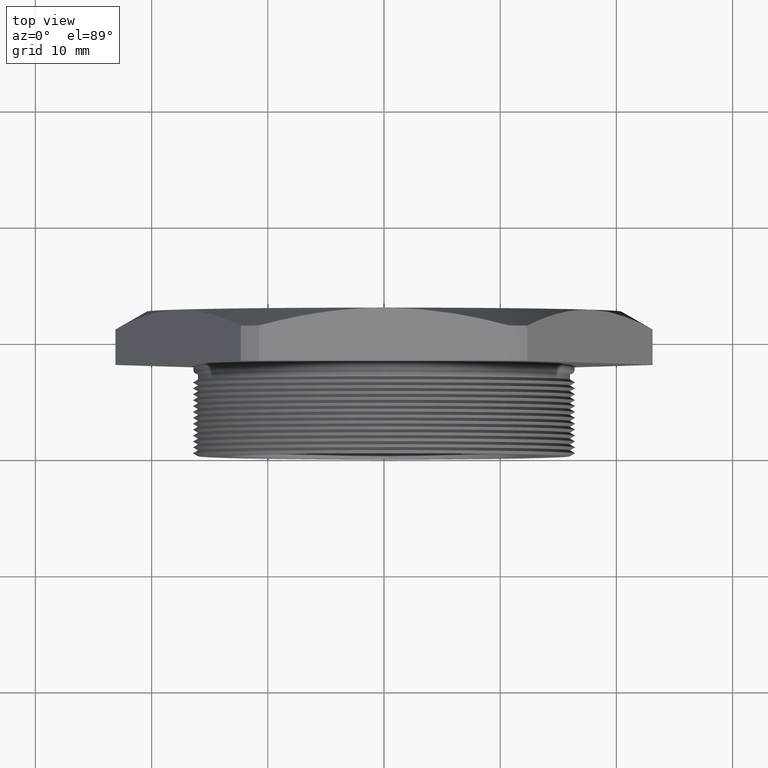
[diagram: clean part render]
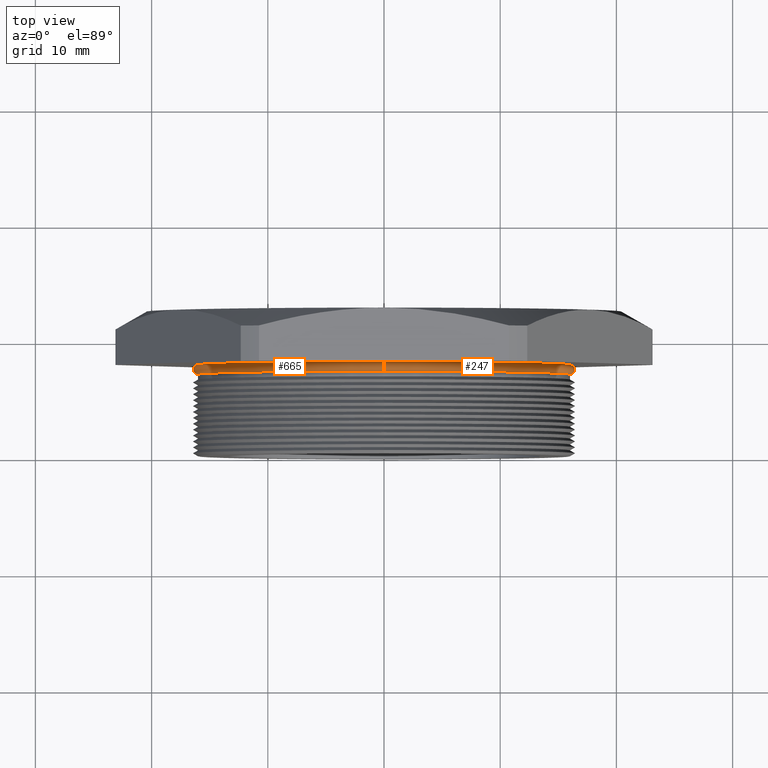
[diagram: same view with one multi-face feature highlighted, each face labeled with its STEP entity id]
A machine part, top view. The highlighted faces form ONE feature: a constant-radius fillet chain: 2 tangent blend faces with common blend radius 0.4089 mm. The faces share edges in the B-rep.
Their STEP definitions:
[1] entity #665 (Torus):
#220 = EDGE_CURVE ( 'NONE', #250, #252, #1228, .T. ) ;
#236 = VERTEX_POINT ( 'NONE', #1202 ) ;
#239 = EDGE_CURVE ( 'NONE', #252, #236, #1260, .T. ) ;
#244 = VERTEX_POINT ( 'NONE', #1245 ) ;
#249 = EDGE_CURVE ( 'NONE', #250, #244, #1238, .T. ) ;
#250 = VERTEX_POINT ( 'NONE', #1233 ) ;
#252 = VERTEX_POINT ( 'NONE', #1284 ) ;
#493 = EDGE_CURVE ( 'NONE', #236, #244, #1763, .T. ) ;
#501 = ORIENTED_EDGE ( 'NONE', *, *, #493, .T. ) ;
#665 = ADVANCED_FACE ( 'NONE', ( #2004 ), #1999, .T. ) ;
#666 = EDGE_LOOP ( 'NONE', ( #667, #668, #669, #501 ) ) ;
#667 = ORIENTED_EDGE ( 'NONE', *, *, #249, .F. ) ;
#668 = ORIENTED_EDGE ( 'NONE', *, *, #220, .T. ) ;
#669 = ORIENTED_EDGE ( 'NONE', *, *, #239, .T. ) ;
#1201 = CARTESIAN_POINT ( 'NONE',  ( 0.0000000000000000000, 0.2939010259262581100, -0.6300000000000000000 ) ) ;
#1202 = CARTESIAN_POINT ( 'NONE',  ( 0.0000000000000000000, 0.2778020518525162700, -0.6300000000000000000 ) ) ;
#1219 = DIRECTION ( 'NONE',  ( 0.0000000000000000000, 0.0000000000000000000, -1.000000000000000000 ) ) ;
#1220 = DIRECTION ( 'NONE',  ( 0.0000000000000000000, -1.000000000000000000, 0.0000000000000000000 ) ) ;
#1221 = CARTESIAN_POINT ( 'NONE',  ( 0.0000000000000000000, 0.3100000000000000000, 0.0000000000000000000 ) ) ;
#1222 = AXIS2_PLACEMENT_3D ( 'NONE', #1221, #1220, #1219 ) ;
#1228 = CIRCLE ( 'NONE', #1222, 0.6300000000000000000 ) ;
#1233 = CARTESIAN_POINT ( 'NONE',  ( 7.715274834628325400E-017, 0.3100000000000000000, 0.6300000000000000000 ) ) ;
#1234 = DIRECTION ( 'NONE',  ( -1.224646799147351000E-016, 0.0000000000000000000, -1.000000000000000000 ) ) ;
#1235 = DIRECTION ( 'NONE',  ( 1.000000000000000000, 0.0000000000000000000, -1.224646799147353200E-016 ) ) ;
#1236 = CARTESIAN_POINT ( 'NONE',  ( 7.715274834628325400E-017, 0.2939010259262581100, 0.6300000000000000000 ) ) ;
#1237 = AXIS2_PLACEMENT_3D ( 'NONE', #1236, #1235, #1234 ) ;
#1238 = CIRCLE ( 'NONE', #1237, 0.01609897407374182000 ) ;
#1245 = CARTESIAN_POINT ( 'NONE',  ( 7.715274834628325400E-017, 0.2778020518525162700, 0.6300000000000000000 ) ) ;
#1257 = DIRECTION ( 'NONE',  ( 0.0000000000000000000, 0.0000000000000000000, 1.000000000000000000 ) ) ;
#1258 = DIRECTION ( 'NONE',  ( -1.000000000000000000, 0.0000000000000000000, 0.0000000000000000000 ) ) ;
#1259 = AXIS2_PLACEMENT_3D ( 'NONE', #1201, #1258, #1257 ) ;
#1260 = CIRCLE ( 'NONE', #1259, 0.01609897407374182000 ) ;
#1284 = CARTESIAN_POINT ( 'NONE',  ( 0.0000000000000000000, 0.3100000000000000000, -0.6300000000000000000 ) ) ;
#1701 = CARTESIAN_POINT ( 'NONE',  ( 0.0000000000000000000, 0.2778020518525162700, 0.0000000000000000000 ) ) ;
#1760 = DIRECTION ( 'NONE',  ( 0.0000000000000000000, 0.0000000000000000000, 1.000000000000000000 ) ) ;
#1761 = DIRECTION ( 'NONE',  ( 0.0000000000000000000, 1.000000000000000000, 0.0000000000000000000 ) ) ;
#1762 = AXIS2_PLACEMENT_3D ( 'NONE', #1701, #1761, #1760 ) ;
#1763 = CIRCLE ( 'NONE', #1762, 0.6300000000000000000 ) ;
#1995 = DIRECTION ( 'NONE',  ( 0.0000000000000000000, 0.0000000000000000000, -1.000000000000000000 ) ) ;
#1996 = DIRECTION ( 'NONE',  ( 0.0000000000000000000, -1.000000000000000000, 0.0000000000000000000 ) ) ;
#1997 = CARTESIAN_POINT ( 'NONE',  ( 0.0000000000000000000, 0.2939010259262581100, 0.0000000000000000000 ) ) ;
#1998 = AXIS2_PLACEMENT_3D ( 'NONE', #1997, #1996, #1995 ) ;
#1999 = TOROIDAL_SURFACE ( 'NONE', #1998, 0.6300000000000000000, 0.01609897407374179600 ) ;
#2004 = FACE_OUTER_BOUND ( 'NONE', #666, .T. ) ;
[2] entity #247 (Torus):
#235 = ORIENTED_EDGE ( 'NONE', *, *, #239, .F. ) ;
#236 = VERTEX_POINT ( 'NONE', #1202 ) ;
#239 = EDGE_CURVE ( 'NONE', #252, #236, #1260, .T. ) ;
#242 = ORIENTED_EDGE ( 'NONE', *, *, #243, .T. ) ;
#243 = EDGE_CURVE ( 'NONE', #244, #236, #1249, .T. ) ;
#244 = VERTEX_POINT ( 'NONE', #1245 ) ;
#245 = EDGE_LOOP ( 'NONE', ( #254, #248, #242, #235 ) ) ;
#247 = ADVANCED_FACE ( 'NONE', ( #1244 ), #1242, .T. ) ;
#248 = ORIENTED_EDGE ( 'NONE', *, *, #249, .T. ) ;
#249 = EDGE_CURVE ( 'NONE', #250, #244, #1238, .T. ) ;
#250 = VERTEX_POINT ( 'NONE', #1233 ) ;
#252 = VERTEX_POINT ( 'NONE', #1284 ) ;
#254 = ORIENTED_EDGE ( 'NONE', *, *, #255, .T. ) ;
#255 = EDGE_CURVE ( 'NONE', #252, #250, #1278, .T. ) ;
#1201 = CARTESIAN_POINT ( 'NONE',  ( 0.0000000000000000000, 0.2939010259262581100, -0.6300000000000000000 ) ) ;
#1202 = CARTESIAN_POINT ( 'NONE',  ( 0.0000000000000000000, 0.2778020518525162700, -0.6300000000000000000 ) ) ;
#1233 = CARTESIAN_POINT ( 'NONE',  ( 7.715274834628325400E-017, 0.3100000000000000000, 0.6300000000000000000 ) ) ;
#1234 = DIRECTION ( 'NONE',  ( -1.224646799147351000E-016, 0.0000000000000000000, -1.000000000000000000 ) ) ;
#1235 = DIRECTION ( 'NONE',  ( 1.000000000000000000, 0.0000000000000000000, -1.224646799147353200E-016 ) ) ;
#1236 = CARTESIAN_POINT ( 'NONE',  ( 7.715274834628325400E-017, 0.2939010259262581100, 0.6300000000000000000 ) ) ;
#1237 = AXIS2_PLACEMENT_3D ( 'NONE', #1236, #1235, #1234 ) ;
#1238 = CIRCLE ( 'NONE', #1237, 0.01609897407374182000 ) ;
#1239 = DIRECTION ( 'NONE',  ( 0.0000000000000000000, 0.0000000000000000000, -1.000000000000000000 ) ) ;
#1240 = DIRECTION ( 'NONE',  ( 0.0000000000000000000, -1.000000000000000000, 0.0000000000000000000 ) ) ;
#1241 = AXIS2_PLACEMENT_3D ( 'NONE', #1243, #1240, #1239 ) ;
#1242 = TOROIDAL_SURFACE ( 'NONE', #1241, 0.6300000000000000000, 0.01609897407374179600 ) ;
#1243 = CARTESIAN_POINT ( 'NONE',  ( 0.0000000000000000000, 0.2939010259262581100, 0.0000000000000000000 ) ) ;
#1244 = FACE_OUTER_BOUND ( 'NONE', #245, .T. ) ;
#1245 = CARTESIAN_POINT ( 'NONE',  ( 7.715274834628325400E-017, 0.2778020518525162700, 0.6300000000000000000 ) ) ;
#1246 = DIRECTION ( 'NONE',  ( 0.0000000000000000000, 0.0000000000000000000, 1.000000000000000000 ) ) ;
#1247 = DIRECTION ( 'NONE',  ( 0.0000000000000000000, 1.000000000000000000, 0.0000000000000000000 ) ) ;
#1248 = AXIS2_PLACEMENT_3D ( 'NONE', #1254, #1247, #1246 ) ;
#1249 = CIRCLE ( 'NONE', #1248, 0.6300000000000000000 ) ;
#1254 = CARTESIAN_POINT ( 'NONE',  ( 0.0000000000000000000, 0.2778020518525162700, 0.0000000000000000000 ) ) ;
#1257 = DIRECTION ( 'NONE',  ( 0.0000000000000000000, 0.0000000000000000000, 1.000000000000000000 ) ) ;
#1258 = DIRECTION ( 'NONE',  ( -1.000000000000000000, 0.0000000000000000000, 0.0000000000000000000 ) ) ;
#1259 = AXIS2_PLACEMENT_3D ( 'NONE', #1201, #1258, #1257 ) ;
#1260 = CIRCLE ( 'NONE', #1259, 0.01609897407374182000 ) ;
#1274 = DIRECTION ( 'NONE',  ( 0.0000000000000000000, 0.0000000000000000000, -1.000000000000000000 ) ) ;
#1275 = DIRECTION ( 'NONE',  ( 0.0000000000000000000, -1.000000000000000000, 0.0000000000000000000 ) ) ;
#1276 = CARTESIAN_POINT ( 'NONE',  ( 0.0000000000000000000, 0.3100000000000000000, 0.0000000000000000000 ) ) ;
#1277 = AXIS2_PLACEMENT_3D ( 'NONE', #1276, #1275, #1274 ) ;
#1278 = CIRCLE ( 'NONE', #1277, 0.6300000000000000000 ) ;
#1284 = CARTESIAN_POINT ( 'NONE',  ( 0.0000000000000000000, 0.3100000000000000000, -0.6300000000000000000 ) ) ;